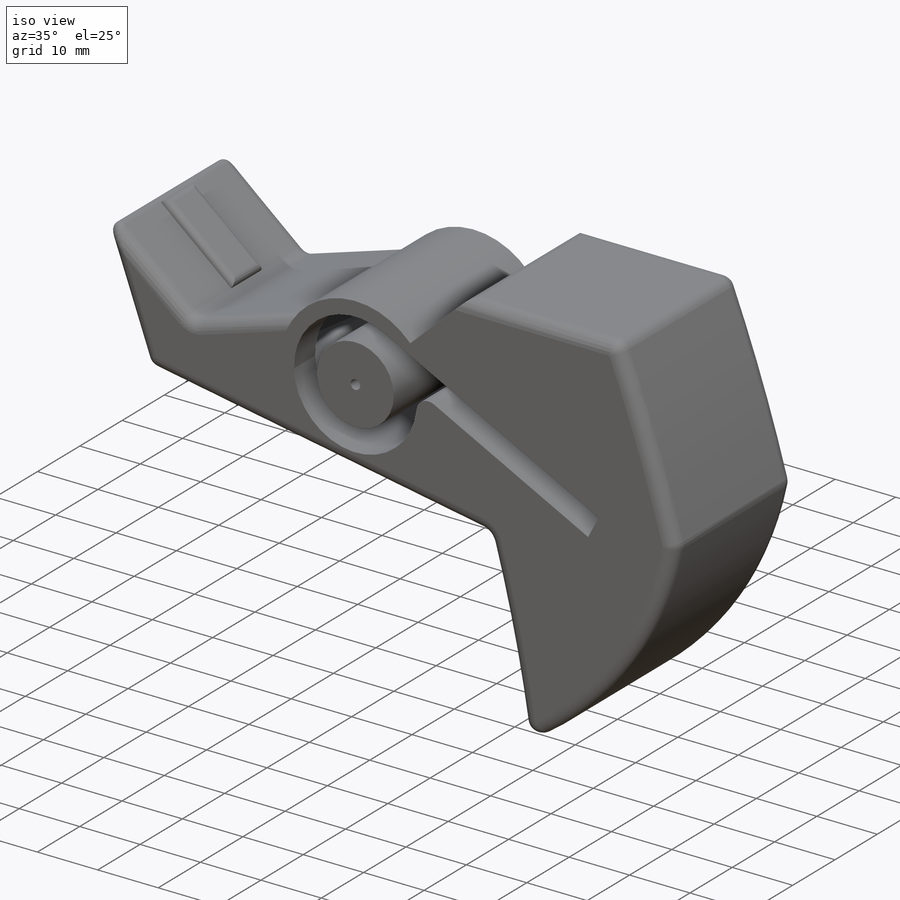
[diagram: iso view]
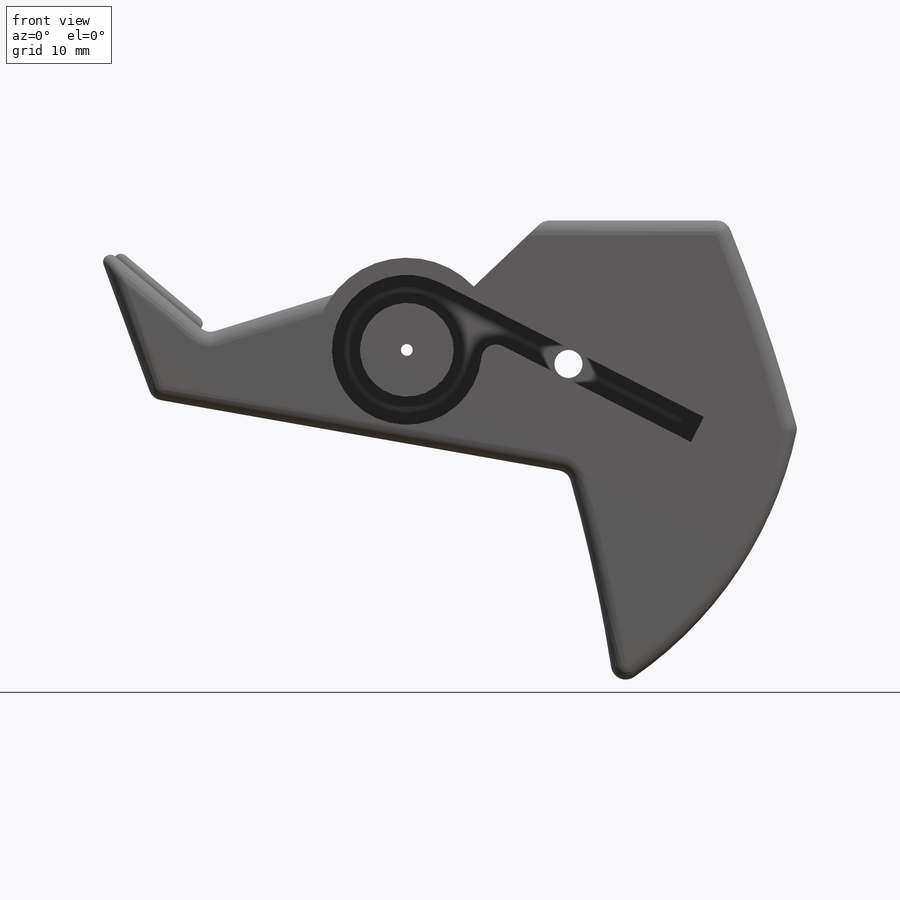
[diagram: front view]
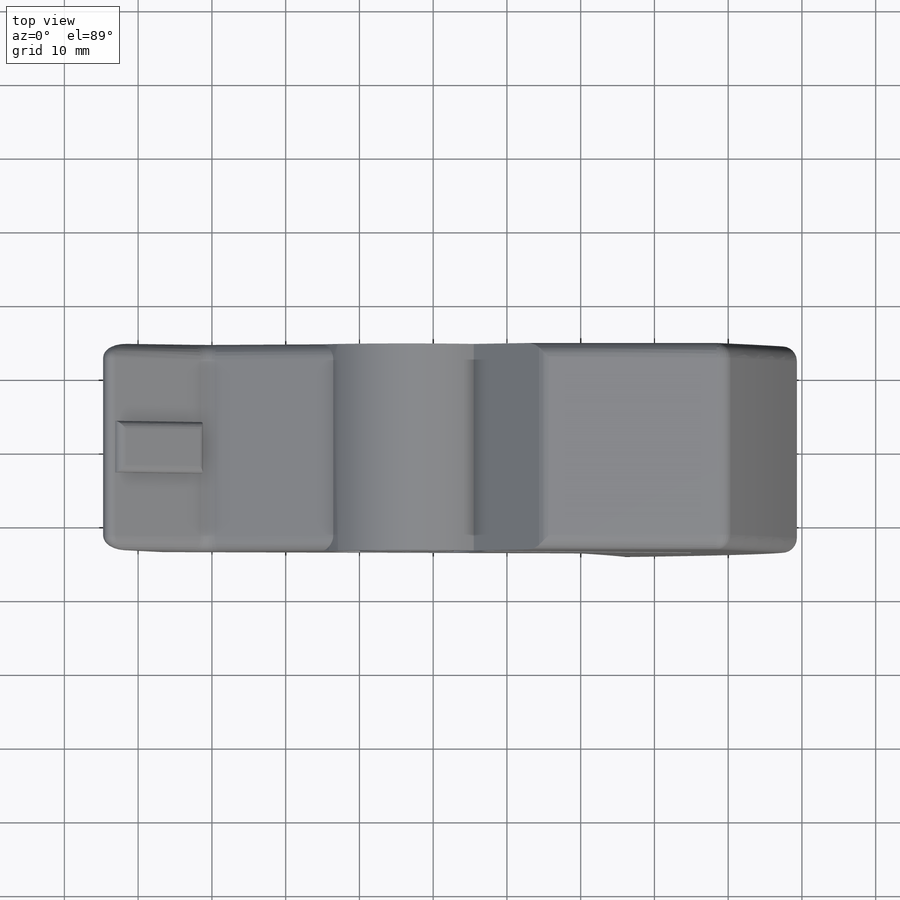
[diagram: top view]
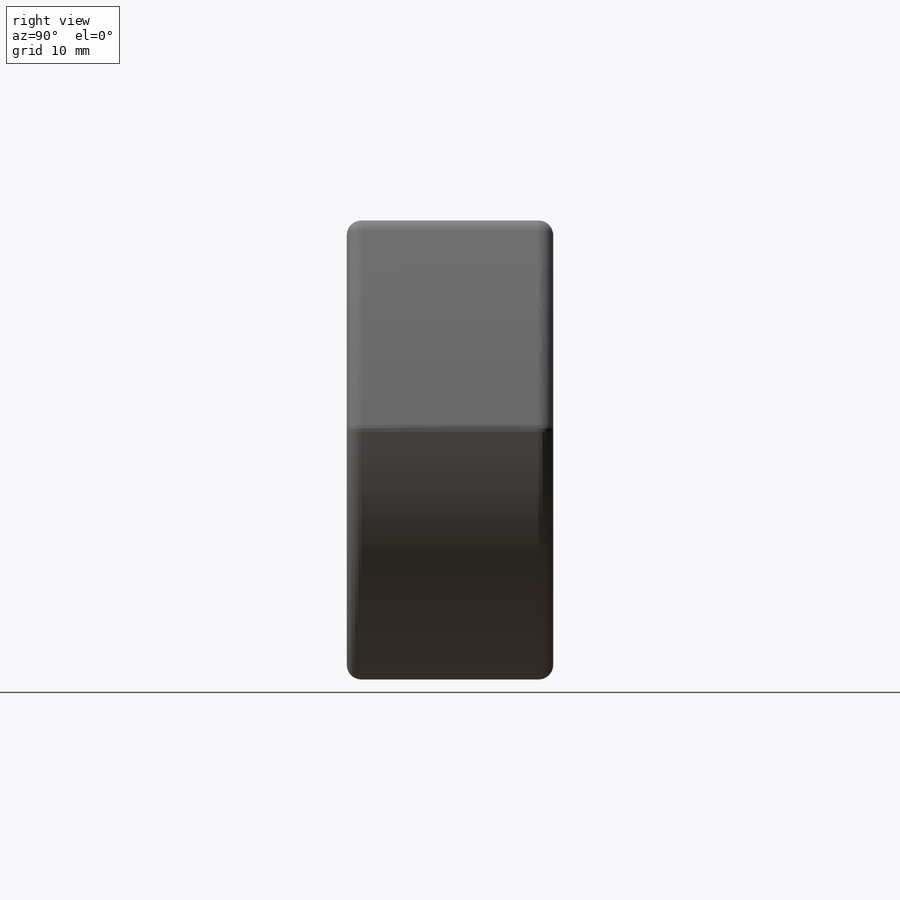
[diagram: right view]
SOLIDWORKS PART (.sldprt)
format: sldprt  version: not decoded by parser v0  size: 5,178,368 bytes
history: native  units: mm
features: sketch x53, cut_extrude x22, extrude x17, fillet x10, thread x8, mirror x7, boolean_combine x4, hole x4, plane x3, delete_body x3, shell x2, material x1, cut_revolve x1, pattern_linear x1 (+11 scaffold rows collapsed)
feature tree (147):
  scaffold x11  (default folders/planes/origin — collapsed)
  material  "Material <not specified>"
  sketch  "Sketch1"  dims[D1=430.4mm D2=~367.695526mm D3=22.0mm D5=433.4mm D6=496.4mm D4=188.0mm]
  sketch  "Sketch2"  dims[c1.D1=20.0mm c1.D2=19.05mm c2.D2=40.0deg c2.D5=~22.604805mm c3.D5=30.0deg c3.D3=~23.094011mm c4.D3=120.0deg c5.D3=0.0mm c5.D4=5.0mm]
  extrude  "Boss-Extrude1"  Depth=135mm
  mirror  "Mirror1"
  sketch  "Sketch3"  dims[D1=40.0mm]
  cut_extrude  "Cut-Extrude1"  [1 undecoded]
  sketch  "Sketch12"  dims[c1.D1=110.0mm c1.D7=25.0mm c1.D3=~3.472663mm c1.D4=~3.870576mm c1.D5=90.0mm c1.D6=45.0mm c2.D7=~84.20075mm c2.D5=1.0mm c2.D2=1.0mm c3.D5=1.0mm c3.D8=1.0mm]
  cut_extrude  "circle cut"  Depth=15mm
  sketch  "Sketch17"
  cut_extrude  "Cut-Extrude14"  Depth=1mm
  sketch  "Sketch18"  dims[D1=~10.052765mm]
  cut_extrude  "Cut-Extrude15"  [1 undecoded]
  sketch  "Sketch64"  dims[D1=10.0mm]
  cut_extrude  "Cut-Extrude32"  Depth=3mm
  mirror  "Mirror2"
  boolean_combine  "Combine1"
  boolean_combine  "Combine2"
  plane  "text plane"  Offset=248.2mm
  sketch  "Sketch19"  dims[c1.D1=20.32mm c1.D2=12.7mm c1.D3=24.0mm c1.D4=40.0mm c1.D5=24.0mm c2.D5=120.0deg c2.D6=~13.027529mm c3.D6=33.0deg]
  cut_extrude  "spring trench 1"  Depth=5mm
  sketch  "Sketch20"
  cut_extrude  "spring trench 2"  Depth=8mm
  sketch  "Sketch21"  dims[D1=1.5875mm D2=22.0mm]
  cut_extrude  "spring holes"  [1 undecoded]
  fillet  "Fillet1"  Radius=1mm
  fillet  "Fillet2"  Radius=2mm
  fillet  "Fillet3"  Radius=2mm
  fillet  "Fillet4"  Radius=1mm
  fillet  "Fillet5"  Radius=2mm
  fillet  "Fillet6"  Radius=1mm
  fillet  "Fillet8"  Radius=10mm
  sketch  "Sketch22"  dims[D1=7.0mm]
  extrude  "Boss-Extrude2"  Depth=1mm
  sketch  "Sketch23"
  extrude  "Boss-Extrude3"  Depth=1mm
  sketch  "Sketch24"  dims[D1=1.0mm]
  extrude  "Boss-Extrude4"  Depth=7mm
  mirror  "Mirror3"
  fillet  "Fillet10"  Radius=1mm
  fillet  "Fillet11"  Radius=1mm
  plane  "Plane1"  Offset=15mm
  sketch  "Sketch25"  dims[D1=43.18mm]
  extrude  "Boss-Extrude5"  Depth=135mm
  shell  "Shell1"  Thickness=3mm
  sketch  "Sketch26"  dims[D1=35.0mm]
  extrude  "Boss-Extrude6"  [1 undecoded]
  sketch  "Sketch27"  dims[D1=15.24mm D2=22.7mm]
  cut_extrude  "Cut-Extrude16"  [1 undecoded]
  plane  "laser plane"
  sketch  "Sketch28"  dims[D1=11.176mm D2=12.7mm]
  extrude  "mirror deck"  Depth=15.875mm
  fillet  "Fillet12"  Radius=8mm
  sketch  "Sketch31"  dims[D1=0.75mm]
  cut_extrude  "Cut-Extrude19"  Depth=0.75mm
  sketch  "Sketch32"  dims[D1=0.75mm]
  cut_extrude  "Cut-Extrude20"  [1 undecoded]
  sketch  "Sketch46"  dims[D1=0.0mm]
  extrude  "Boss-Extrude15"  Depth=20mm
  mirror  "Mirror4"
  sketch  "Sketch29"  dims[c1.D1=1.6mm c1.D2=4.064mm c1.D3=12.7mm c1.D4=4.064mm c2.D2=4.445mm]
  hole  "M2x0.4 Tapped Hole3"  Diameter=1.6mm Depth=78.27396mm
  sketch  "Sketch55"
  sketch  "Sketch54"  dims[hole-wizard template sketch: 60 standard entries collapsed; hole parameters kept: c18.Thru Tap Drill Depth=~78.27396mm]
  thread  "Hole Thread35"  Diameter=2mm  [1 undecoded]
  thread  "Hole Thread36"  Diameter=2mm  [1 undecoded]
  sketch  "Sketch30"  dims[c1.D1=1.6mm c1.D2=4.064mm c1.D3=4.064mm c1.D4=12.7mm c2.D3=4.445mm]
  hole  "M2x0.4 Tapped Hole4"  Diameter=1.6mm Depth=78.27396mm
  sketch  "Sketch57"
  sketch  "Sketch56"  dims[hole-wizard template sketch: 60 standard entries collapsed; hole parameters kept: c18.Thru Tap Drill Depth=~78.27396mm]
  thread  "Hole Thread37"  Diameter=2mm  [1 undecoded]
  thread  "Hole Thread38"  Diameter=2mm  [1 undecoded]
  sketch  "Sketch33"
  extrude  "begin laser"  Depth=60mm
  shell  "Shell2"  Thickness=3mm
  sketch  "Sketch34"  dims[D1=10.0mm D2=11.0mm D3=3.888mm]
  extrude  "laser deck"  Depth=15.875mm
  sketch  "Sketch35"  dims[D1=28.0mm D2=18.256mm]
  extrude  "Boss-Extrude10"  Depth=88.6mm
  sketch  "Sketch36"  dims[D1=3.0mm]
  extrude  "Boss-Extrude11"  [1 undecoded]
  sketch  "Sketch37"
  cut_extrude  "Cut-Extrude21"  [1 undecoded]
  sketch  "Sketch38"  dims[D1=~7.315833mm D2=1.3mm]
  cut_revolve  "Cut-Revolve1"  Angle=360deg
  pattern_linear  "LPattern1"  Count1=12 Count2=1 Spacing1=7.315833mm Spacing2=10mm
  sketch  "Sketch39"  dims[D1=32.0mm]
  extrude  "Boss-Extrude12"  Depth=5mm
  sketch  "Sketch40"  dims[D1=20.0mm]
  cut_extrude  "Cut-Extrude22"  Depth=12mm
  sketch  "Sketch41"  dims[D1=20.0mm D2=70.0mm]
  extrude  "Boss-Extrude13"  [1 undecoded]
  sketch  "Sketch42"
  extrude  "Boss-Extrude14"  [1 undecoded]
  sketch  "Sketch43"  dims[D1=15.0mm D2=90.0mm]
  cut_extrude  "Cut-Extrude23"  Depth=3mm
  mirror  "Mirror7"
  mirror  "Mirror8"
  sketch  "Sketch45"  dims[c1.D1=10.0mm c1.D2=5.0mm c1.D3=5.0mm c2.D1=1.0mm]
  cut_extrude  "Cut-Extrude24"  Depth=3mm
  sketch  "Sketch47"  dims[D1=5.0mm D2=5.0mm D3=5.0mm D4=5.0mm]
  cut_extrude  "Cut-Extrude25"  Depth=3mm
  mirror  "Mirror9"
  sketch  "Sketch48"  dims[D1=12.7mm D2=4.445mm]
  hole  "M2x0.4 Tapped Hole1"  Diameter=1.6mm Depth=78.27396mm
  sketch  "Sketch50"
  sketch  "Sketch49"  dims[hole-wizard template sketch: 60 standard entries collapsed; hole parameters kept: c18.Thru Tap Drill Depth=~78.27396mm]
  thread  "Hole Thread100"  Diameter=2mm  [1 undecoded]
  thread  "Hole Thread101"  Diameter=2mm  [1 undecoded]
  sketch  "Sketch51"  dims[D1=3.888mm D2=12.7mm D3=4.445mm]
  hole  "M2x0.4 Tapped Hole2"  Diameter=1.6mm Depth=78.27396mm
  sketch  "Sketch53"
  sketch  "Sketch52"  dims[hole-wizard template sketch: 60 standard entries collapsed; hole parameters kept: c18.Thru Tap Drill Depth=~78.27396mm]
  thread  "Hole Thread98"  Diameter=2mm  [1 undecoded]
  thread  "Hole Thread99"  Diameter=2mm  [1 undecoded]
  delete_body  "laser north"
  boolean_combine  "combine laser north"
  sketch  "Sketch58"  dims[D1=27.0mm]
  cut_extrude  "Cut-Extrude27"  [1 undecoded]
  sketch  "Sketch59"
  extrude  "Boss-Extrude16"  [1 undecoded]
  sketch  "Sketch60"  dims[D1=5.0mm D2=5.0mm]
  cut_extrude  "Cut-Extrude28"  Depth=3mm
  sketch  "Sketch66"  dims[D1=5.0mm]
  cut_extrude  "text"  Depth=2mm
  delete_body  "laser south"
  boolean_combine  "Combine laser south"
  sketch  "Sketch61"  dims[D1=27.0mm]
  cut_extrude  "Cut-Extrude30"  [1 undecoded]
  sketch  "Sketch62"
  extrude  "Boss-Extrude17"  [1 undecoded]
  sketch  "Sketch63"  dims[D1=5.0mm]
  cut_extrude  "Cut-Extrude31"  Depth=3mm
  sketch  "Sketch67"  dims[D1=5.0mm]
  cut_extrude  "text south"  Depth=1.5mm
  delete_body  "toggle clamp"
decode coverage: 92 of 132 modeling features carry decoded parameters
note: ~ marks probable driven/reference dimensions
note: 22 parameter values undecoded
summary: no parameter record found for 14 features; Diameter pulled from absorbed wizard sketch
note: suppression state not decoded; provenance and decode notes live in map.json
